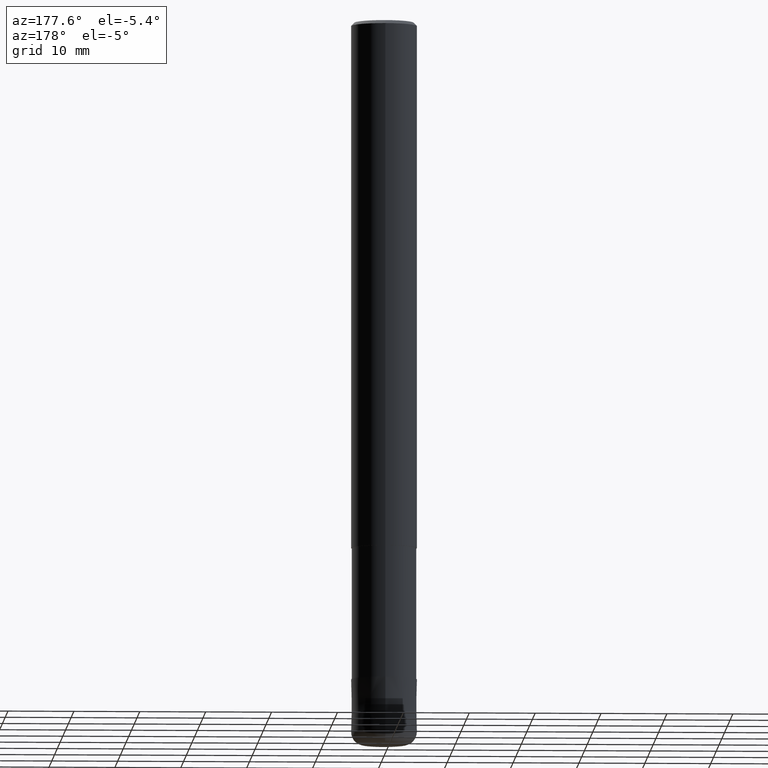
[diagram: clean part render]
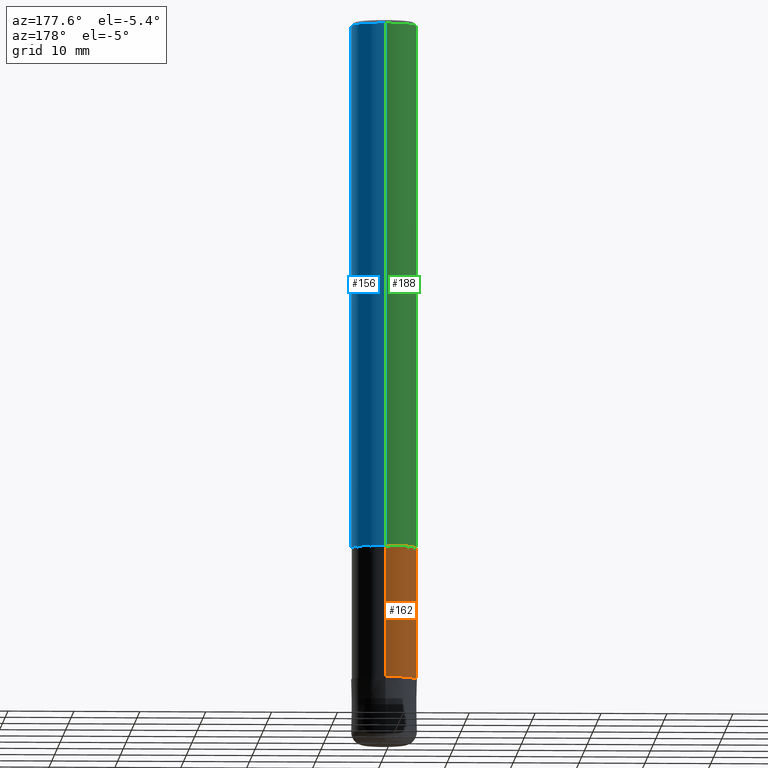
[diagram: same view with three faces highlighted in distinct colors, each labeled with its STEP entity id]
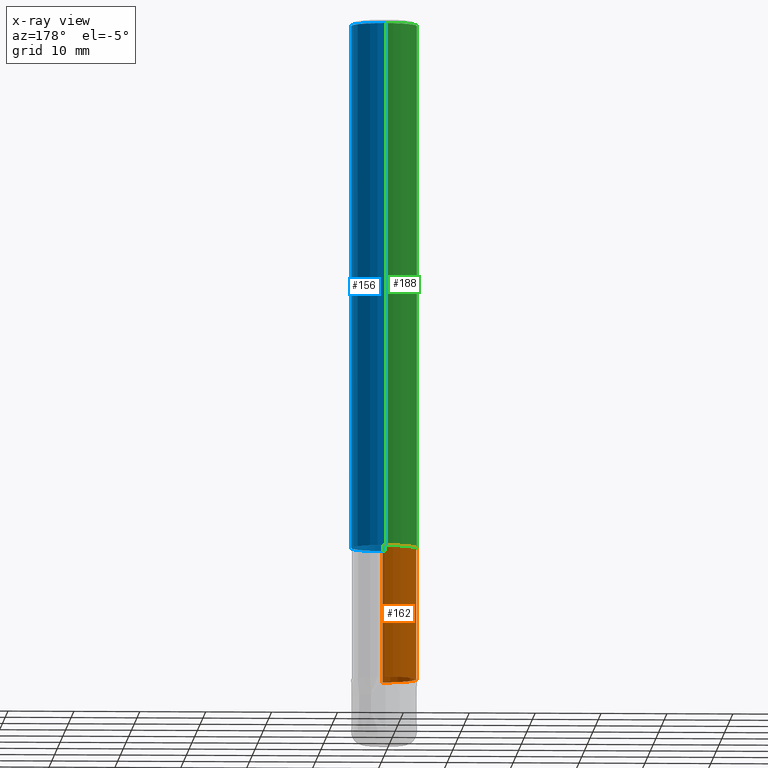
[diagram: x-ray of the same camera — body ghosted, the three highlighted faces saturated]
A machine part, auxiliary view with three faces highlighted in distinct colors.
The next image is the same camera in x-ray (body ghosted, the three faces saturated) — at least one of them is partly hidden behind the body in this view.
Their STEP definitions:

[orange] entity #162 — the highlighted cylindrical surface (edge-blend (fillet) strip) has radius 4.91 mm, axis along (-0, -0, 1).
#100=VERTEX_POINT('',#238);
#104=VERTEX_POINT('',#242);
#124=VERTEX_POINT('',#265);
#142=EDGE_CURVE('',#100,#104,#286,.T.);
#162=ADVANCED_FACE('',(#309),#310,.T.);
#166=EDGE_CURVE('',#104,#184,#314,.T.);
#168=EDGE_CURVE('',#124,#184,#316,.T.);
#184=VERTEX_POINT('',#334);
#208=EDGE_CURVE('',#124,#100,#361,.T.);
#238=CARTESIAN_POINT('',(6.01275596695018E-016,-4.90995,-80.0));
#242=CARTESIAN_POINT('',(0.0,4.90995,-80.0));
#265=CARTESIAN_POINT('',(6.01275596695018E-016,-4.90995,-100.0));
#286=CIRCLE('',#441,4.90995);
#309=FACE_OUTER_BOUND('',#468,.T.);
#310=CYLINDRICAL_SURFACE('',#469,4.90995);
#314=LINE('',#474,#475);
#316=CIRCLE('',#478,4.90995);
#334=CARTESIAN_POINT('',(0.0,4.90995,-100.0));
#361=LINE('',#537,#538);
#441=AXIS2_PLACEMENT_3D('',#610,#611,#612);
#468=EDGE_LOOP('',(#649,#650,#651,#652));
#469=AXIS2_PLACEMENT_3D('',#653,#654,#655);
#474=CARTESIAN_POINT('',(-6.01275596695018E-016,4.90995,-90.0));
#475=VECTOR('',#656,1.0);
#478=AXIS2_PLACEMENT_3D('',#657,#658,#659);
#537=CARTESIAN_POINT('',(6.01275596695018E-016,-4.90995,-90.0));
#538=VECTOR('',#715,1.0);
#610=CARTESIAN_POINT('',(0.0,0.0,-80.0));
#611=DIRECTION('',(0.0,0.0,-1.0));
#612=DIRECTION('',(0.0,1.0,0.0));
#649=ORIENTED_EDGE('',*,*,#166,.T.);
#650=ORIENTED_EDGE('',*,*,#168,.F.);
#651=ORIENTED_EDGE('',*,*,#208,.T.);
#652=ORIENTED_EDGE('',*,*,#142,.T.);
#653=CARTESIAN_POINT('',(0.0,0.0,-90.0));
#654=DIRECTION('',(-0.0,-0.0,1.0));
#655=DIRECTION('',(0.0,1.0,0.0));
#656=DIRECTION('',(0.0,0.0,-1.0));
#657=CARTESIAN_POINT('',(0.0,0.0,-100.0));
#658=DIRECTION('',(0.0,0.0,-1.0));
#659=DIRECTION('',(0.0,1.0,0.0));
#715=DIRECTION('',(-0.0,-0.0,1.0));

[blue] entity #156 — the highlighted cylindrical surface (edge-blend (fillet) strip) has radius 5 mm, axis along (-0, -0, 1).
#92=VERTEX_POINT('',#229);
#106=EDGE_CURVE('',#196,#112,#244,.T.);
#112=VERTEX_POINT('',#252);
#120=VERTEX_POINT('',#261);
#148=EDGE_CURVE('',#120,#92,#292,.T.);
#156=ADVANCED_FACE('',(#301),#302,.T.);
#174=EDGE_CURVE('',#120,#196,#322,.T.);
#196=VERTEX_POINT('',#349);
#202=EDGE_CURVE('',#112,#92,#355,.T.);
#229=CARTESIAN_POINT('',(6.12303176911189E-016,-5.0,-0.5));
#244=CIRCLE('',#392,5.0);
#252=CARTESIAN_POINT('',(6.12303176911189E-016,-5.0,-80.0));
#261=CARTESIAN_POINT('',(0.0,5.0,-0.5));
#292=CIRCLE('',#448,5.0);
#301=FACE_OUTER_BOUND('',#459,.T.);
#302=CYLINDRICAL_SURFACE('',#460,5.0);
#322=LINE('',#488,#489);
#349=CARTESIAN_POINT('',(0.0,5.0,-80.0));
#355=LINE('',#526,#527);
#392=AXIS2_PLACEMENT_3D('',#554,#555,#556);
#448=AXIS2_PLACEMENT_3D('',#617,#618,#619);
#459=EDGE_LOOP('',(#630,#631,#632,#633));
#460=AXIS2_PLACEMENT_3D('',#634,#635,#636);
#488=CARTESIAN_POINT('',(-6.12303176911189E-016,5.0,-40.25));
#489=VECTOR('',#664,1.0);
#526=CARTESIAN_POINT('',(6.12303176911189E-016,-5.0,-40.25));
#527=VECTOR('',#710,1.0);
#554=CARTESIAN_POINT('',(0.0,0.0,-80.0));
#555=DIRECTION('',(0.0,0.0,-1.0));
#556=DIRECTION('',(0.0,1.0,0.0));
#617=CARTESIAN_POINT('',(0.0,0.0,-0.5));
#618=DIRECTION('',(0.0,0.0,-1.0));
#619=DIRECTION('',(0.0,1.0,0.0));
#630=ORIENTED_EDGE('',*,*,#174,.F.);
#631=ORIENTED_EDGE('',*,*,#148,.T.);
#632=ORIENTED_EDGE('',*,*,#202,.F.);
#633=ORIENTED_EDGE('',*,*,#106,.F.);
#634=CARTESIAN_POINT('',(0.0,0.0,-40.25));
#635=DIRECTION('',(-0.0,-0.0,1.0));
#636=DIRECTION('',(0.0,1.0,0.0));
#664=DIRECTION('',(0.0,0.0,-1.0));
#710=DIRECTION('',(-0.0,-0.0,1.0));

[green] entity #188 — the highlighted cylindrical surface (edge-blend (fillet) strip) has radius 5 mm, axis along (-0, -0, 1).
#92=VERTEX_POINT('',#229);
#112=VERTEX_POINT('',#252);
#120=VERTEX_POINT('',#261);
#126=EDGE_CURVE('',#112,#196,#267,.T.);
#130=EDGE_CURVE('',#92,#120,#273,.T.);
#174=EDGE_CURVE('',#120,#196,#322,.T.);
#188=ADVANCED_FACE('',(#338),#339,.T.);
#196=VERTEX_POINT('',#349);
#202=EDGE_CURVE('',#112,#92,#355,.T.);
#229=CARTESIAN_POINT('',(6.12303176911189E-016,-5.0,-0.5));
#252=CARTESIAN_POINT('',(6.12303176911189E-016,-5.0,-80.0));
#261=CARTESIAN_POINT('',(0.0,5.0,-0.5));
#267=CIRCLE('',#419,5.0);
#273=CIRCLE('',#426,5.0);
#322=LINE('',#488,#489);
#338=FACE_OUTER_BOUND('',#506,.T.);
#339=CYLINDRICAL_SURFACE('',#507,5.0);
#349=CARTESIAN_POINT('',(0.0,5.0,-80.0));
#355=LINE('',#526,#527);
#419=AXIS2_PLACEMENT_3D('',#581,#582,#583);
#426=AXIS2_PLACEMENT_3D('',#592,#593,#594);
#488=CARTESIAN_POINT('',(-6.12303176911189E-016,5.0,-40.25));
#489=VECTOR('',#664,1.0);
#506=EDGE_LOOP('',(#683,#684,#685,#686));
#507=AXIS2_PLACEMENT_3D('',#687,#688,#689);
#526=CARTESIAN_POINT('',(6.12303176911189E-016,-5.0,-40.25));
#527=VECTOR('',#710,1.0);
#581=CARTESIAN_POINT('',(0.0,0.0,-80.0));
#582=DIRECTION('',(0.0,0.0,-1.0));
#583=DIRECTION('',(0.0,1.0,0.0));
#592=CARTESIAN_POINT('',(0.0,0.0,-0.5));
#593=DIRECTION('',(0.0,0.0,-1.0));
#594=DIRECTION('',(0.0,1.0,0.0));
#664=DIRECTION('',(0.0,0.0,-1.0));
#683=ORIENTED_EDGE('',*,*,#174,.T.);
#684=ORIENTED_EDGE('',*,*,#126,.F.);
#685=ORIENTED_EDGE('',*,*,#202,.T.);
#686=ORIENTED_EDGE('',*,*,#130,.T.);
#687=CARTESIAN_POINT('',(0.0,0.0,-40.25));
#688=DIRECTION('',(-0.0,-0.0,1.0));
#689=DIRECTION('',(0.0,1.0,0.0));
#710=DIRECTION('',(-0.0,-0.0,1.0));